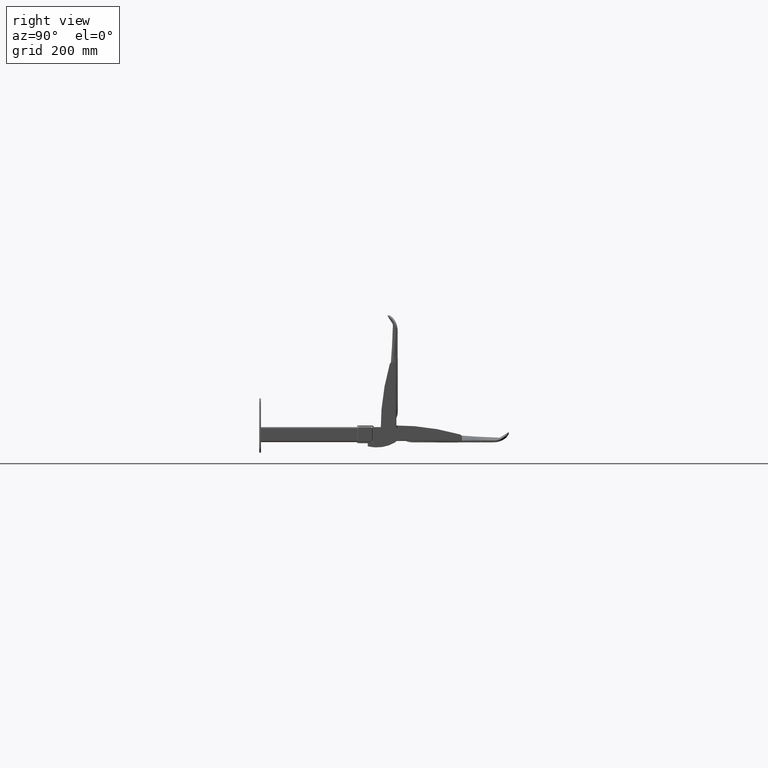
[diagram: clean part render]
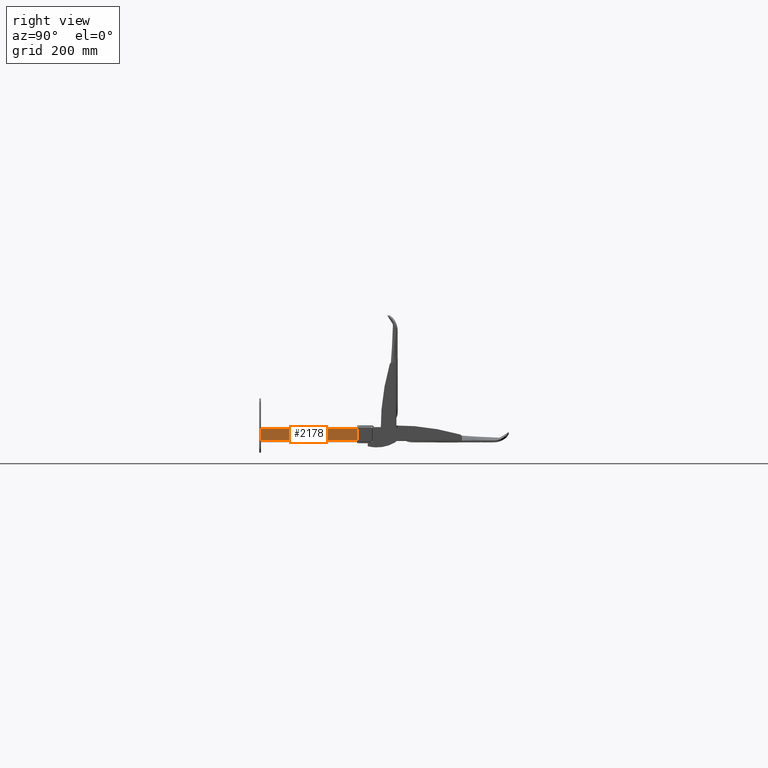
[diagram: same view with one face highlighted and labeled with its STEP entity id]
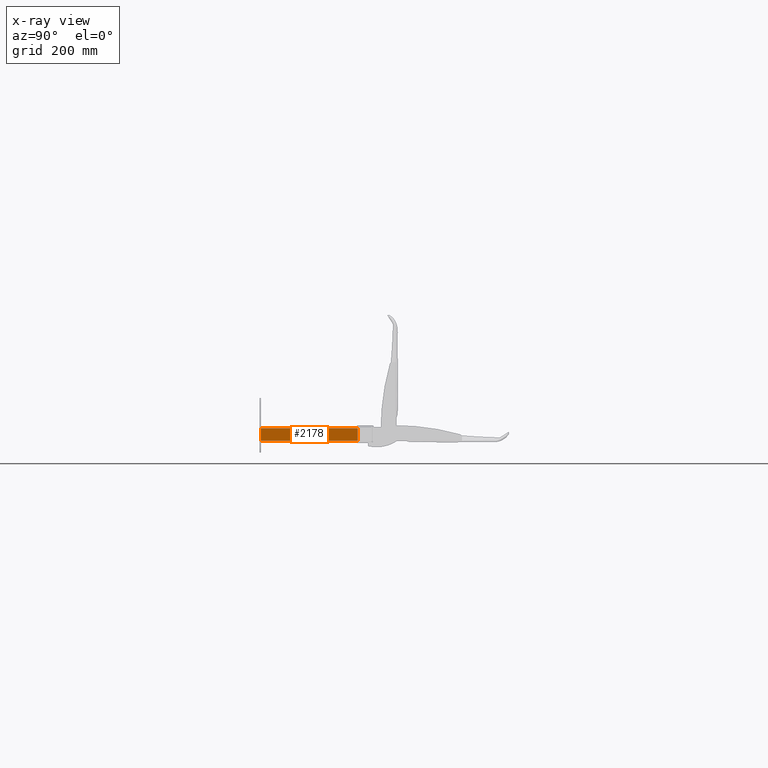
[diagram: x-ray of the same camera — body ghosted, the highlighted face saturated]
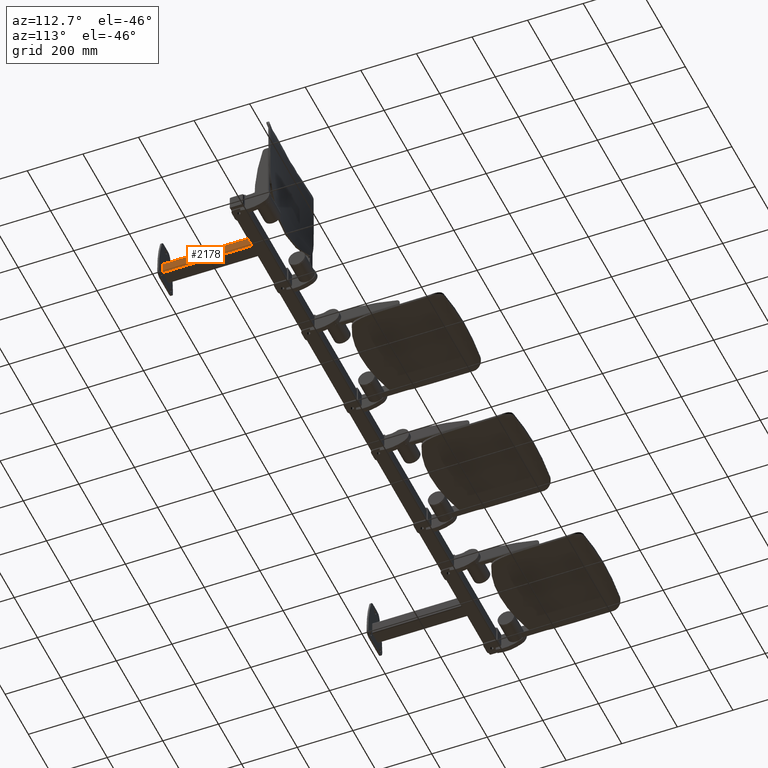
[diagram: same view with one face highlighted and labeled with its STEP entity id]
A machine part, right view. The second image highlights one B-rep face of the part: STEP entity #2178.
The next image is the same camera in x-ray: the body ghosted, the highlighted face saturated — about 0% of this face is hidden behind the body in this view.
A second angle (auxiliary view) of the same face is appended — the face is thin or edge-on in the first view.
In plain terms, the highlighted planar face has unit normal (-1, -0, 0).
Its self-contained STEP definition (entity closure, byte-faithful):
#2178 = ADVANCED_FACE ( 'NONE', ( #3042 ), #12201, .F. ) ;
#3042 = FACE_OUTER_BOUND ( 'NONE', #4266, .T. ) ;
#4266 = EDGE_LOOP ( 'NONE', ( #11590, #11573, #11584, #11583 ) ) ;
#5717 = VERTEX_POINT ( 'NONE', #6178 ) ;
#5724 = VERTEX_POINT ( 'NONE', #6191 ) ;
#5728 = VERTEX_POINT ( 'NONE', #6199 ) ;
#5730 = VERTEX_POINT ( 'NONE', #6203 ) ;
#6178 = CARTESIAN_POINT ( 'NONE',  ( 924.9999999999996600, 6.000000000000000900, -19.99999999999999600 ) ) ;
#6191 = CARTESIAN_POINT ( 'NONE',  ( 924.9999999999996600, 6.000000000000000900, 20.00000000000000000 ) ) ;
#6199 = CARTESIAN_POINT ( 'NONE',  ( 924.9999999999995500, 325.9999999999999400, -19.99999999999999600 ) ) ;
#6203 = CARTESIAN_POINT ( 'NONE',  ( 924.9999999999995500, 325.9999999999999400, 20.00000000000000400 ) ) ;
#11362 = EDGE_CURVE ( 'NONE', #5724, #5717, #11779, .T. ) ;
#11365 = EDGE_CURVE ( 'NONE', #5717, #5728, #11785, .T. ) ;
#11367 = EDGE_CURVE ( 'NONE', #5730, #5728, #11787, .T. ) ;
#11369 = EDGE_CURVE ( 'NONE', #5730, #5724, #11782, .T. ) ;
#11573 = ORIENTED_EDGE ( 'NONE', *, *, #11365, .T. ) ;
#11583 = ORIENTED_EDGE ( 'NONE', *, *, #11369, .T. ) ;
#11584 = ORIENTED_EDGE ( 'NONE', *, *, #11367, .F. ) ;
#11590 = ORIENTED_EDGE ( 'NONE', *, *, #11362, .T. ) ;
#11779 = LINE ( 'NONE', #13998, #11786 ) ;
#11782 = LINE ( 'NONE', #14003, #11792 ) ;
#11785 = LINE ( 'NONE', #14000, #11788 ) ;
#11786 = VECTOR ( 'NONE', #13976, 1000.000000000000000 ) ;
#11787 = LINE ( 'NONE', #14002, #11790 ) ;
#11788 = VECTOR ( 'NONE', #13999, 1000.000000000000000 ) ;
#11790 = VECTOR ( 'NONE', #14004, 1000.000000000000000 ) ;
#11792 = VECTOR ( 'NONE', #14001, 1000.000000000000000 ) ;
#12199 = CARTESIAN_POINT ( 'NONE',  ( 924.9999999999996600, 6.000000000000000900, 25.00000000000000000 ) ) ;
#12201 = PLANE ( 'NONE',  #16992 ) ;
#12203 = DIRECTION ( 'NONE',  ( -1.000000000000000000, -3.469446951953614700E-016, 0.0000000000000000000 ) ) ;
#12204 = DIRECTION ( 'NONE',  ( 3.469446951953614700E-016, -1.000000000000000000, 0.0000000000000000000 ) ) ;
#13976 = DIRECTION ( 'NONE',  ( -0.0000000000000000000, -0.0000000000000000000, -1.000000000000000000 ) ) ;
#13998 = CARTESIAN_POINT ( 'NONE',  ( 924.9999999999996600, 6.000000000000000900, 25.00000000000000000 ) ) ;
#13999 = DIRECTION ( 'NONE',  ( -3.469446951953614700E-016, 1.000000000000000000, 0.0000000000000000000 ) ) ;
#14000 = CARTESIAN_POINT ( 'NONE',  ( 924.9999999999995500, 325.9999999999999400, -19.99999999999999600 ) ) ;
#14001 = DIRECTION ( 'NONE',  ( 3.469446951953614700E-016, -1.000000000000000000, -0.0000000000000000000 ) ) ;
#14002 = CARTESIAN_POINT ( 'NONE',  ( 924.9999999999995500, 325.9999999999999400, 25.00000000000000000 ) ) ;
#14003 = CARTESIAN_POINT ( 'NONE',  ( 924.9999999999996600, 6.000000000000000900, 20.00000000000000000 ) ) ;
#14004 = DIRECTION ( 'NONE',  ( -0.0000000000000000000, -0.0000000000000000000, -1.000000000000000000 ) ) ;
#16992 = AXIS2_PLACEMENT_3D ( 'NONE', #12199, #12203, #12204 ) ;